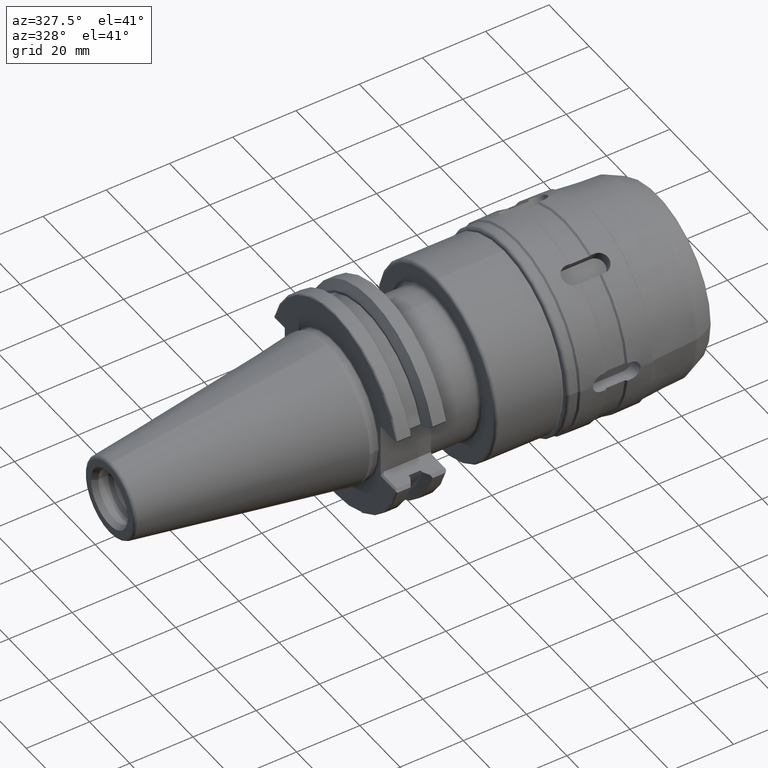
[diagram: clean part render]
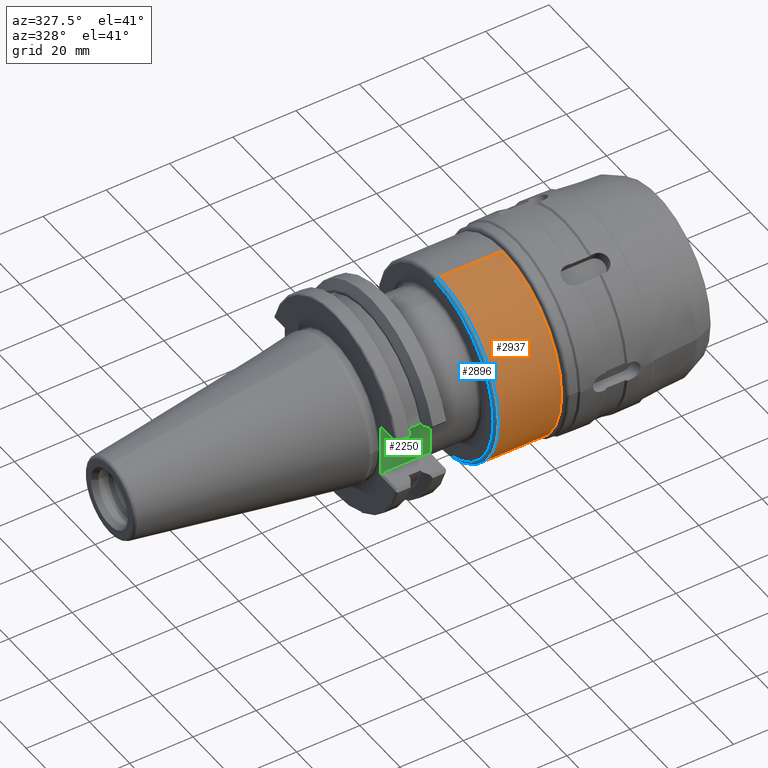
[diagram: same view with three faces highlighted in distinct colors, each labeled with its STEP entity id]
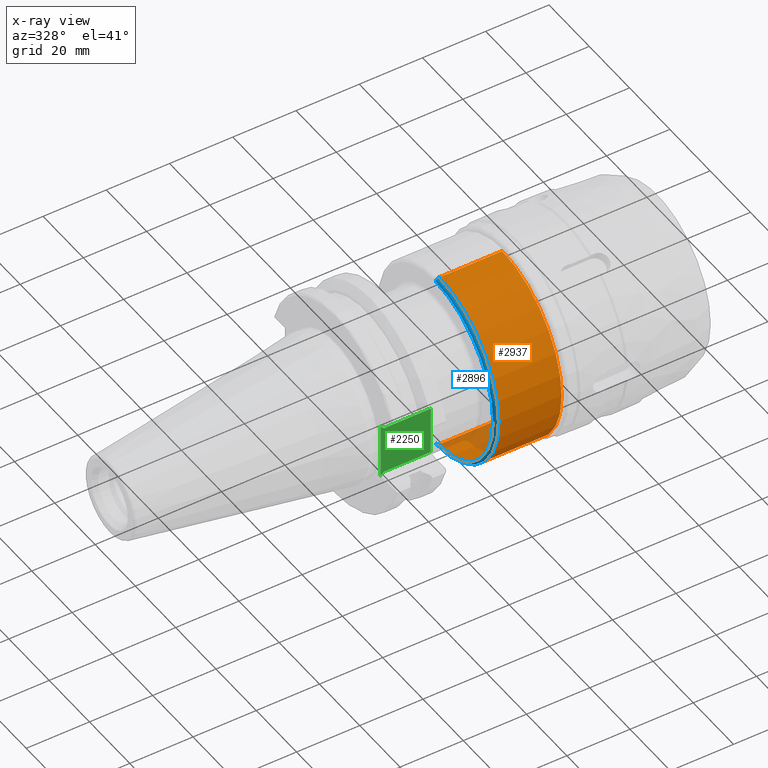
[diagram: x-ray of the same camera — body ghosted, the three highlighted faces saturated]
A machine part, auxiliary view with three faces highlighted in distinct colors.
The next image is the same camera in x-ray (body ghosted, the three faces saturated) — at least one of them is partly hidden behind the body in this view.
Their STEP definitions:

[orange] entity #2937 — the highlighted cylindrical surface (partial cylindrical patch) has radius 29.5 mm, axis along (1, 0, 0).
#880=CARTESIAN_POINT('',(3.6E1,0.E0,0.E0));
#881=DIRECTION('',(-1.E0,0.E0,0.E0));
#882=DIRECTION('',(0.E0,0.E0,-1.E0));
#883=AXIS2_PLACEMENT_3D('',#880,#881,#882);
#895=DIRECTION('',(-1.E0,0.E0,0.E0));
#896=VECTOR('',#895,2.E1);
#897=CARTESIAN_POINT('',(5.6E1,0.E0,-2.95E1));
#898=LINE('',#897,#896);
#899=DIRECTION('',(-1.E0,0.E0,0.E0));
#900=VECTOR('',#899,2.E1);
#901=CARTESIAN_POINT('',(5.6E1,0.E0,2.95E1));
#902=LINE('',#901,#900);
#903=CARTESIAN_POINT('',(5.6E1,0.E0,0.E0));
#904=DIRECTION('',(-1.E0,0.E0,0.E0));
#905=DIRECTION('',(0.E0,0.E0,-1.E0));
#906=AXIS2_PLACEMENT_3D('',#903,#904,#905);
#1655=CARTESIAN_POINT('',(5.6E1,0.E0,-2.95E1));
#1657=VERTEX_POINT('',#1655);
#1658=CARTESIAN_POINT('',(3.6E1,0.E0,-2.95E1));
#1659=VERTEX_POINT('',#1658);
#1709=CARTESIAN_POINT('',(5.6E1,0.E0,2.95E1));
#1711=VERTEX_POINT('',#1709);
#1712=CARTESIAN_POINT('',(3.6E1,0.E0,2.95E1));
#1713=VERTEX_POINT('',#1712);
#2925=CARTESIAN_POINT('',(1.47525E1,0.E0,0.E0));
#2926=DIRECTION('',(1.E0,0.E0,0.E0));
#2927=DIRECTION('',(0.E0,0.E0,1.E0));
#2928=AXIS2_PLACEMENT_3D('',#2925,#2926,#2927);
#2929=CYLINDRICAL_SURFACE('',#2928,2.95E1);
#2930=ORIENTED_EDGE('',*,*,#2915,.T.);
#2931=ORIENTED_EDGE('',*,*,#2892,.T.);
#2932=ORIENTED_EDGE('',*,*,#2919,.F.);
#2934=ORIENTED_EDGE('',*,*,#2933,.F.);
#2935=EDGE_LOOP('',(#2930,#2931,#2932,#2934));
#2936=FACE_OUTER_BOUND('',#2935,.F.);
#2937=ADVANCED_FACE('',(#2936),#2929,.T.);
#884=CIRCLE('',#883,2.95E1);
#907=CIRCLE('',#906,2.95E1);
#2892=EDGE_CURVE('',#1659,#1713,#884,.T.);
#2915=EDGE_CURVE('',#1657,#1659,#898,.T.);
#2919=EDGE_CURVE('',#1711,#1713,#902,.T.);
#2933=EDGE_CURVE('',#1657,#1711,#907,.T.);

[blue] entity #2896 — the highlighted toroidal blend (fillet) surface has major radius 28.5 mm and minor (blend) radius 1 mm.
#860=CARTESIAN_POINT('',(3.5E1,0.E0,0.E0));
#861=DIRECTION('',(-1.E0,0.E0,0.E0));
#862=DIRECTION('',(0.E0,0.E0,-1.E0));
#863=AXIS2_PLACEMENT_3D('',#860,#861,#862);
#870=CARTESIAN_POINT('',(3.6E1,0.E0,-2.85E1));
#871=DIRECTION('',(0.E0,1.E0,0.E0));
#872=DIRECTION('',(0.E0,0.E0,-1.E0));
#873=AXIS2_PLACEMENT_3D('',#870,#871,#872);
#875=CARTESIAN_POINT('',(3.6E1,0.E0,2.85E1));
#876=DIRECTION('',(0.E0,-1.E0,0.E0));
#877=DIRECTION('',(0.E0,0.E0,1.E0));
#878=AXIS2_PLACEMENT_3D('',#875,#876,#877);
#880=CARTESIAN_POINT('',(3.6E1,0.E0,0.E0));
#881=DIRECTION('',(-1.E0,0.E0,0.E0));
#882=DIRECTION('',(0.E0,0.E0,-1.E0));
#883=AXIS2_PLACEMENT_3D('',#880,#881,#882);
#1658=CARTESIAN_POINT('',(3.6E1,0.E0,-2.95E1));
#1659=VERTEX_POINT('',#1658);
#1660=CARTESIAN_POINT('',(3.5E1,0.E0,-2.85E1));
#1661=VERTEX_POINT('',#1660);
#1712=CARTESIAN_POINT('',(3.6E1,0.E0,2.95E1));
#1713=VERTEX_POINT('',#1712);
#1714=CARTESIAN_POINT('',(3.5E1,0.E0,2.85E1));
#1715=VERTEX_POINT('',#1714);
#2882=CARTESIAN_POINT('',(3.6E1,0.E0,0.E0));
#2883=DIRECTION('',(1.E0,0.E0,0.E0));
#2884=DIRECTION('',(0.E0,0.E0,1.E0));
#2885=AXIS2_PLACEMENT_3D('',#2882,#2883,#2884);
#2886=TOROIDAL_SURFACE('',#2885,2.85E1,1.E0);
#2888=ORIENTED_EDGE('',*,*,#2887,.T.);
#2889=ORIENTED_EDGE('',*,*,#2871,.T.);
#2891=ORIENTED_EDGE('',*,*,#2890,.F.);
#2893=ORIENTED_EDGE('',*,*,#2892,.F.);
#2894=EDGE_LOOP('',(#2888,#2889,#2891,#2893));
#2895=FACE_OUTER_BOUND('',#2894,.F.);
#2896=ADVANCED_FACE('',(#2895),#2886,.T.);
#864=CIRCLE('',#863,2.85E1);
#874=CIRCLE('',#873,1.E0);
#879=CIRCLE('',#878,1.E0);
#884=CIRCLE('',#883,2.95E1);
#2871=EDGE_CURVE('',#1661,#1715,#864,.T.);
#2887=EDGE_CURVE('',#1659,#1661,#874,.T.);
#2890=EDGE_CURVE('',#1713,#1715,#879,.T.);
#2892=EDGE_CURVE('',#1659,#1713,#884,.T.);

[green] entity #2250 — the highlighted planar face has unit normal (0, 1, 0).
#288=DIRECTION('',(7.071067811865E-1,0.E0,7.071067811865E-1));
#289=VECTOR('',#288,1.414213562373E0);
#290=CARTESIAN_POINT('',(3.175E0,-2.26E1,-8.69E0));
#291=LINE('',#290,#289);
#296=DIRECTION('',(0.E0,0.E0,-1.E0));
#297=VECTOR('',#296,1.538E1);
#298=CARTESIAN_POINT('',(1.905E1,-2.26E1,7.69E0));
#299=LINE('',#298,#297);
#300=DIRECTION('',(1.E0,0.E0,0.E0));
#301=VECTOR('',#300,1.4875E1);
#302=CARTESIAN_POINT('',(4.175E0,-2.26E1,-7.69E0));
#303=LINE('',#302,#301);
#304=DIRECTION('',(0.E0,0.E0,1.E0));
#305=VECTOR('',#304,1.738E1);
#306=CARTESIAN_POINT('',(3.175E0,-2.26E1,-8.69E0));
#307=LINE('',#306,#305);
#308=DIRECTION('',(-1.E0,0.E0,0.E0));
#309=VECTOR('',#308,1.4875E1);
#310=CARTESIAN_POINT('',(1.905E1,-2.26E1,7.69E0));
#311=LINE('',#310,#309);
#528=DIRECTION('',(-7.071067811865E-1,0.E0,7.071067811865E-1));
#529=VECTOR('',#528,1.414213562373E0);
#530=CARTESIAN_POINT('',(4.175E0,-2.26E1,7.69E0));
#531=LINE('',#530,#529);
#1548=CARTESIAN_POINT('',(3.175E0,-2.26E1,8.69E0));
#1550=VERTEX_POINT('',#1548);
#1557=CARTESIAN_POINT('',(3.175E0,-2.26E1,-8.69E0));
#1559=VERTEX_POINT('',#1557);
#1572=CARTESIAN_POINT('',(4.175E0,-2.26E1,-7.69E0));
#1573=VERTEX_POINT('',#1572);
#1574=CARTESIAN_POINT('',(4.175E0,-2.26E1,7.69E0));
#1575=VERTEX_POINT('',#1574);
#1592=CARTESIAN_POINT('',(1.905E1,-2.26E1,7.69E0));
#1593=CARTESIAN_POINT('',(1.905E1,-2.26E1,-7.69E0));
#1594=VERTEX_POINT('',#1592);
#1595=VERTEX_POINT('',#1593);
#2234=CARTESIAN_POINT('',(0.E0,-2.26E1,0.E0));
#2235=DIRECTION('',(0.E0,1.E0,0.E0));
#2236=DIRECTION('',(1.E0,0.E0,0.E0));
#2237=AXIS2_PLACEMENT_3D('',#2234,#2235,#2236);
#2238=PLANE('',#2237);
#2239=ORIENTED_EDGE('',*,*,#2051,.T.);
#2241=ORIENTED_EDGE('',*,*,#2240,.F.);
#2242=ORIENTED_EDGE('',*,*,#2221,.F.);
#2243=ORIENTED_EDGE('',*,*,#1919,.T.);
#2245=ORIENTED_EDGE('',*,*,#2244,.F.);
#2247=ORIENTED_EDGE('',*,*,#2246,.F.);
#2248=EDGE_LOOP('',(#2239,#2241,#2242,#2243,#2245,#2247));
#2249=FACE_OUTER_BOUND('',#2248,.F.);
#2250=ADVANCED_FACE('',(#2249),#2238,.F.);
#1919=EDGE_CURVE('',#1559,#1550,#307,.T.);
#2051=EDGE_CURVE('',#1594,#1595,#299,.T.);
#2221=EDGE_CURVE('',#1559,#1573,#291,.T.);
#2240=EDGE_CURVE('',#1573,#1595,#303,.T.);
#2244=EDGE_CURVE('',#1575,#1550,#531,.T.);
#2246=EDGE_CURVE('',#1594,#1575,#311,.T.);